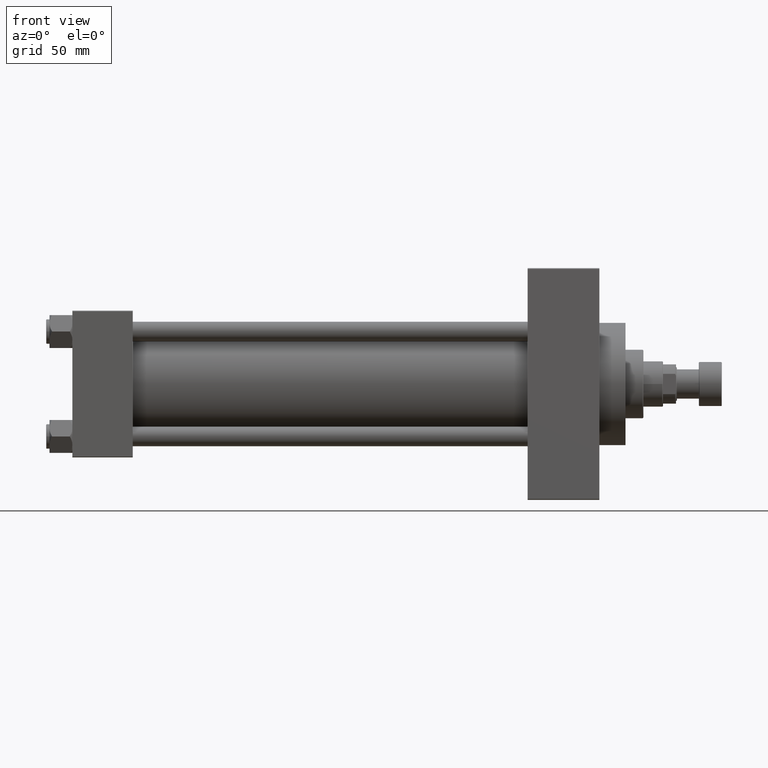
[diagram: clean part render]
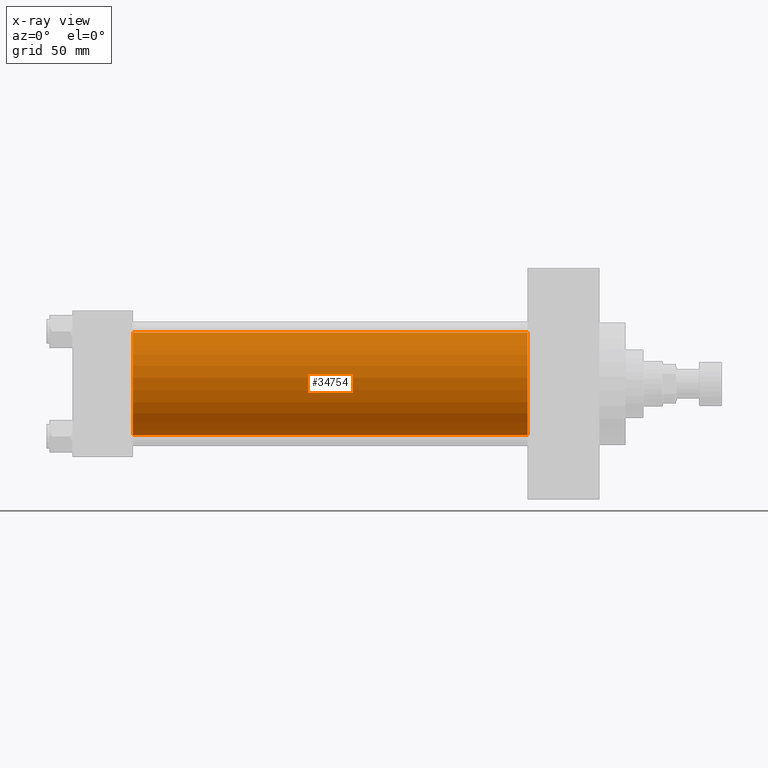
[diagram: x-ray — body ghosted, one internal face saturated and labeled with its STEP entity id]
A machine part, front view, then the same camera in x-ray: the body is ghosted and one INTERNAL B-rep face — a face not visible from any outside direction — is saturated and labeled: STEP entity #34754.
In plain terms, the highlighted cylindrical surface (partial cylindrical patch) has radius 31.5 mm, axis along (-1, -0, -0).
Its self-contained STEP definition (entity closure, byte-faithful):
#613 = LINE ( 'NONE', #8415, #39925 ) ;
#1518 = VERTEX_POINT ( 'NONE', #16172 ) ;
#4136 = DIRECTION ( 'NONE',  ( -1.000000000000000000, -0.000000000000000000, -0.000000000000000000 ) ) ;
#5711 = CIRCLE ( 'NONE', #40271, 31.50000000000000000 ) ;
#6739 = ORIENTED_EDGE ( 'NONE', *, *, #39263, .T. ) ;
#6859 = ORIENTED_EDGE ( 'NONE', *, *, #40900, .F. ) ;
#8415 = CARTESIAN_POINT ( 'NONE',  ( 278.9999999999999432, -2.602085213965210642E-15, 31.50000000000000000 ) ) ;
#9230 = DIRECTION ( 'NONE',  ( 0.000000000000000000, 0.000000000000000000, -1.000000000000000000 ) ) ;
#9594 = EDGE_LOOP ( 'NONE', ( #6739, #24085, #6859, #39768 ) ) ;
#10506 = AXIS2_PLACEMENT_3D ( 'NONE', #29532, #36585, #33559 ) ;
#10678 = EDGE_CURVE ( 'NONE', #45857, #18609, #39570, .T. ) ;
#12662 = DIRECTION ( 'NONE',  ( -1.000000000000000000, -0.000000000000000000, -0.000000000000000000 ) ) ;
#13511 = CARTESIAN_POINT ( 'NONE',  ( 278.9999999999999432, -2.602085213965210642E-15, 0.000000000000000000 ) ) ;
#14238 = CARTESIAN_POINT ( 'NONE',  ( 278.9999999999999432, 1.255552203348951850E-15, -31.50000000000000000 ) ) ;
#14705 = CYLINDRICAL_SURFACE ( 'NONE', #10506, 31.50000000000000000 ) ;
#16172 = CARTESIAN_POINT ( 'NONE',  ( 37.00000000000000000, -2.602085213965210642E-15, 31.50000000000000000 ) ) ;
#17284 = DIRECTION ( 'NONE',  ( 1.000000000000000000, 0.000000000000000000, 0.000000000000000000 ) ) ;
#18470 = FACE_OUTER_BOUND ( 'NONE', #9594, .T. ) ;
#18609 = VERTEX_POINT ( 'NONE', #27323 ) ;
#18617 = AXIS2_PLACEMENT_3D ( 'NONE', #25608, #37428, #40956 ) ;
#20097 = EDGE_CURVE ( 'NONE', #25480, #1518, #613, .T. ) ;
#23465 = CARTESIAN_POINT ( 'NONE',  ( 278.9999999999999432, 1.255552203348951850E-15, -31.50000000000000000 ) ) ;
#24085 = ORIENTED_EDGE ( 'NONE', *, *, #10678, .T. ) ;
#25480 = VERTEX_POINT ( 'NONE', #31828 ) ;
#25608 = CARTESIAN_POINT ( 'NONE',  ( 37.00000000000000000, -2.602085213965210642E-15, 0.000000000000000000 ) ) ;
#27323 = CARTESIAN_POINT ( 'NONE',  ( 37.00000000000000000, 1.255552203348951850E-15, -31.50000000000000000 ) ) ;
#29532 = CARTESIAN_POINT ( 'NONE',  ( 278.9999999999999432, -2.602085213965210642E-15, 0.000000000000000000 ) ) ;
#31828 = CARTESIAN_POINT ( 'NONE',  ( 278.9999999999999432, -2.602085213965210642E-15, 31.50000000000000000 ) ) ;
#33559 = DIRECTION ( 'NONE',  ( 0.000000000000000000, 0.000000000000000000, 1.000000000000000000 ) ) ;
#34754 = ADVANCED_FACE ( 'NONE', ( #18470 ), #14705, .F. ) ;
#36585 = DIRECTION ( 'NONE',  ( -1.000000000000000000, -0.000000000000000000, -0.000000000000000000 ) ) ;
#37428 = DIRECTION ( 'NONE',  ( 1.000000000000000000, 0.000000000000000000, 0.000000000000000000 ) ) ;
#39263 = EDGE_CURVE ( 'NONE', #25480, #45857, #5711, .T. ) ;
#39570 = LINE ( 'NONE', #23465, #49215 ) ;
#39768 = ORIENTED_EDGE ( 'NONE', *, *, #20097, .F. ) ;
#39925 = VECTOR ( 'NONE', #4136, 1000.000000000000000 ) ;
#40271 = AXIS2_PLACEMENT_3D ( 'NONE', #13511, #17284, #9230 ) ;
#40900 = EDGE_CURVE ( 'NONE', #1518, #18609, #42696, .T. ) ;
#40956 = DIRECTION ( 'NONE',  ( 0.000000000000000000, 0.000000000000000000, -1.000000000000000000 ) ) ;
#42696 = CIRCLE ( 'NONE', #18617, 31.50000000000000000 ) ;
#45857 = VERTEX_POINT ( 'NONE', #14238 ) ;
#49215 = VECTOR ( 'NONE', #12662, 1000.000000000000000 ) ;